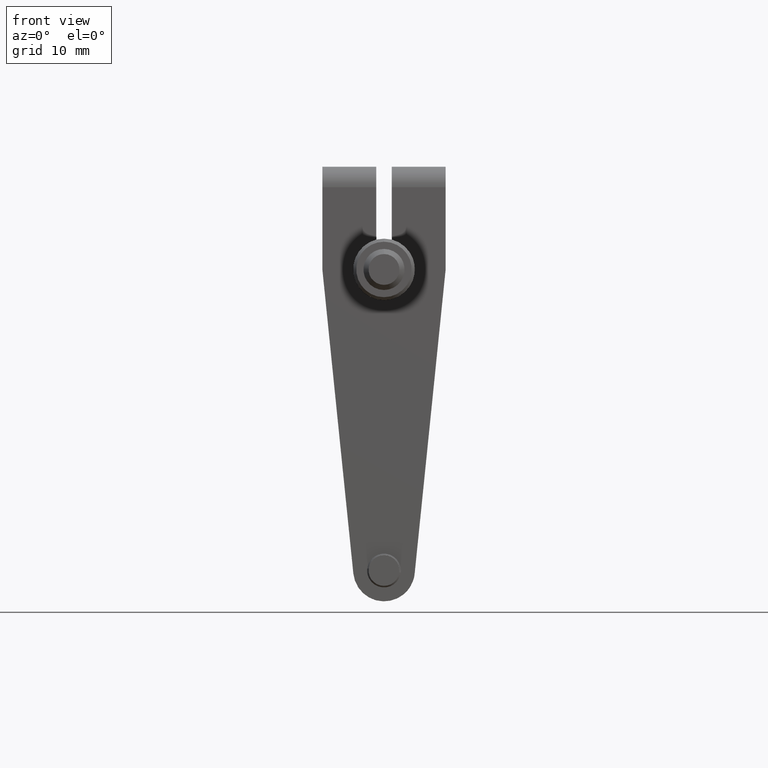
[diagram: clean part render]
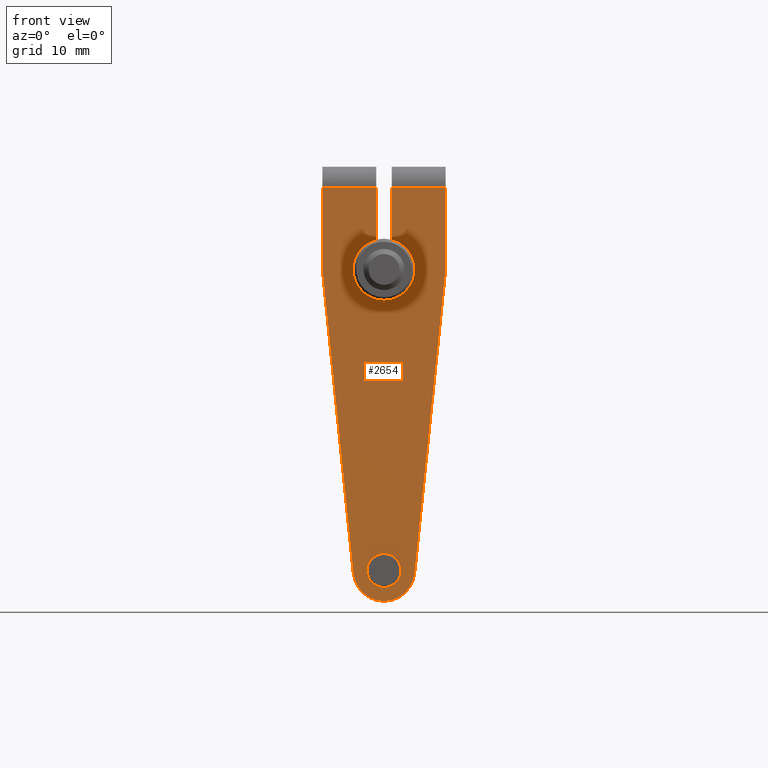
[diagram: same view with one face highlighted and labeled with its STEP entity id]
A machine part, front view. The second image highlights one B-rep face of the part: STEP entity #2654.
In plain terms, the highlighted planar face has unit normal (-0, 1, 0).
Its self-contained STEP definition (entity closure, byte-faithful):
#4 = CARTESIAN_POINT ( 'NONE',  ( 1.650000000000001910, 5.886547410561991457E-15, -29.30000000000019966 ) ) ;
#47 = CARTESIAN_POINT ( 'NONE',  ( -4.066191827689641844E-16, 5.857047165704546372E-15, -29.30000000000019966 ) ) ;
#188 = ORIENTED_EDGE ( 'NONE', *, *, #4985, .F. ) ;
#224 = LINE ( 'NONE', #2039, #5355 ) ;
#232 = ORIENTED_EDGE ( 'NONE', *, *, #703, .F. ) ;
#253 = ORIENTED_EDGE ( 'NONE', *, *, #3647, .F. ) ;
#265 = CARTESIAN_POINT ( 'NONE',  ( 6.000000000000052403, 1.072736176634379454E-16, -8.326672684688777591E-17 ) ) ;
#332 = DIRECTION ( 'NONE',  ( 7.285838599102595960E-17, 2.460847057598062588E-16, -1.000000000000000000 ) ) ;
#578 = EDGE_LOOP ( 'NONE', ( #5699, #1323, #5367, #232, #188, #1983, #253, #4539, #3921, #3757 ) ) ;
#609 = DIRECTION ( 'NONE',  ( -1.787893627723952815E-17, 1.000000000000000000, 2.460847057598134572E-16 ) ) ;
#623 = AXIS2_PLACEMENT_3D ( 'NONE', #4929, #2916, #5430 ) ;
#624 = EDGE_CURVE ( 'NONE', #3132, #2528, #4648, .T. ) ;
#650 = DIRECTION ( 'NONE',  ( -1.387778780781436739E-17, 2.460847057598062588E-16, -1.000000000000000000 ) ) ;
#659 = ORIENTED_EDGE ( 'NONE', *, *, #4773, .F. ) ;
#703 = EDGE_CURVE ( 'NONE', #5943, #5069, #1379, .T. ) ;
#712 = DIRECTION ( 'NONE',  ( 1.387778780781436739E-17, -2.460847057598062588E-16, 1.000000000000000000 ) ) ;
#842 = CARTESIAN_POINT ( 'NONE',  ( -0.7500000000000063283, -1.982086848286392169E-15, 8.000000000000049738 ) ) ;
#991 = EDGE_CURVE ( 'NONE', #2528, #5300, #224, .T. ) ;
#1021 = CARTESIAN_POINT ( 'NONE',  ( 1.110223024625159992E-16, -1.968677646078462298E-15, 8.000000000000049738 ) ) ;
#1026 = LINE ( 'NONE', #2898, #2040 ) ;
#1083 = CARTESIAN_POINT ( 'NONE',  ( -6.000000000000051514, -2.075951263741900478E-15, 8.000000000000049738 ) ) ;
#1095 = VERTEX_POINT ( 'NONE', #3742 ) ;
#1184 = VERTEX_POINT ( 'NONE', #6369 ) ;
#1323 = ORIENTED_EDGE ( 'NONE', *, *, #1532, .T. ) ;
#1364 = VECTOR ( 'NONE', #5419, 1000.000000000000000 ) ;
#1366 = AXIS2_PLACEMENT_3D ( 'NONE', #2131, #609, #3583 ) ;
#1379 = LINE ( 'NONE', #2085, #2093 ) ;
#1419 = VECTOR ( 'NONE', #1566, 1000.000000000000000 ) ;
#1491 = EDGE_LOOP ( 'NONE', ( #3208, #659 ) ) ;
#1496 = CARTESIAN_POINT ( 'NONE',  ( 2.984557093065597577, 7.338453532714837308E-15, -29.60400486547437993 ) ) ;
#1525 = LINE ( 'NONE', #4007, #4495 ) ;
#1532 = EDGE_CURVE ( 'NONE', #5300, #2809, #1525, .T. ) ;
#1566 = DIRECTION ( 'NONE',  ( -0.1013349551580598890, 2.430061901508669109E-16, -0.9948523643551911988 ) ) ;
#1983 = ORIENTED_EDGE ( 'NONE', *, *, #3097, .F. ) ;
#2039 = CARTESIAN_POINT ( 'NONE',  ( -0.7500000000000064393, -2.747883989543573921E-16, 1.062151326875022006 ) ) ;
#2040 = VECTOR ( 'NONE', #332, 1000.000000000000000 ) ;
#2078 = EDGE_CURVE ( 'NONE', #1184, #4703, #2465, .T. ) ;
#2082 = PLANE ( 'NONE',  #1366 ) ;
#2085 = CARTESIAN_POINT ( 'NONE',  ( -2.984557093065598465, 7.231732120549430660E-15, -29.60400486547437993 ) ) ;
#2087 = DIRECTION ( 'NONE',  ( -1.000000000000000000, -1.787893627723957745E-17, 0.0000000000000000000 ) ) ;
#2093 = VECTOR ( 'NONE', #6035, 1000.000000000000000 ) ;
#2094 = AXIS2_PLACEMENT_3D ( 'NONE', #3055, #4022, #3549 ) ;
#2131 = CARTESIAN_POINT ( 'NONE',  ( -4.066191827689642337E-16, 7.210281878762368497E-15, -29.30000000000019966 ) ) ;
#2134 = VERTEX_POINT ( 'NONE', #1496 ) ;
#2204 = EDGE_CURVE ( 'NONE', #6273, #1095, #2849, .T. ) ;
#2323 = LINE ( 'NONE', #5083, #5752 ) ;
#2465 = LINE ( 'NONE', #1021, #1364 ) ;
#2528 = VERTEX_POINT ( 'NONE', #2692 ) ;
#2654 = ADVANCED_FACE ( 'NONE', ( #5489, #4701 ), #2082, .F. ) ;
#2692 = CARTESIAN_POINT ( 'NONE',  ( -0.7500000000000064393, -7.282206775809953118E-16, 2.904737509655575867 ) ) ;
#2809 = VERTEX_POINT ( 'NONE', #1083 ) ;
#2849 = CIRCLE ( 'NONE', #5325, 1.650000000000002354 ) ;
#2898 = CARTESIAN_POINT ( 'NONE',  ( 6.000000000000052403, 1.072736176634379454E-16, -8.326672684688777591E-17 ) ) ;
#2916 = DIRECTION ( 'NONE',  ( -1.787893627723963292E-17, 1.000000000000000000, 2.460847057598134572E-16 ) ) ;
#2949 = CARTESIAN_POINT ( 'NONE',  ( -6.000000000000051514, -2.568120675261514770E-15, 10.00000000000004974 ) ) ;
#3055 = CARTESIAN_POINT ( 'NONE',  ( -4.066191827689641844E-16, 5.857047165704546372E-15, -29.30000000000019966 ) ) ;
#3097 = EDGE_CURVE ( 'NONE', #3509, #2134, #3232, .T. ) ;
#3121 = CARTESIAN_POINT ( 'NONE',  ( -6.000000000000052403, -1.072736176634379454E-16, 8.326672684688777591E-17 ) ) ;
#3132 = VERTEX_POINT ( 'NONE', #4032 ) ;
#3208 = ORIENTED_EDGE ( 'NONE', *, *, #2204, .F. ) ;
#3232 = LINE ( 'NONE', #3576, #1419 ) ;
#3283 = CIRCLE ( 'NONE', #2094, 1.650000000000002354 ) ;
#3509 = VERTEX_POINT ( 'NONE', #265 ) ;
#3529 = DIRECTION ( 'NONE',  ( 1.787893627723963292E-17, -1.000000000000000000, -2.460847057598134572E-16 ) ) ;
#3549 = DIRECTION ( 'NONE',  ( 1.000000000000000000, 1.787893627723938332E-17, 0.0000000000000000000 ) ) ;
#3576 = CARTESIAN_POINT ( 'NONE',  ( 2.984557093065597577, 7.338453532714837308E-15, -29.60400486547437993 ) ) ;
#3583 = DIRECTION ( 'NONE',  ( -1.000000000000000000, -1.787893627723953123E-17, 1.387778780781449990E-17 ) ) ;
#3634 = LINE ( 'NONE', #2949, #4877 ) ;
#3647 = EDGE_CURVE ( 'NONE', #1184, #3509, #1026, .T. ) ;
#3742 = CARTESIAN_POINT ( 'NONE',  ( -1.649999999999992140, 5.827546920847101286E-15, -29.30000000000019966 ) ) ;
#3757 = ORIENTED_EDGE ( 'NONE', *, *, #624, .T. ) ;
#3921 = ORIENTED_EDGE ( 'NONE', *, *, #6087, .T. ) ;
#3951 = CARTESIAN_POINT ( 'NONE',  ( 0.7500000000000063283, -1.955268443870532821E-15, 8.000000000000049738 ) ) ;
#4007 = CARTESIAN_POINT ( 'NONE',  ( 1.110223024625159992E-16, -1.968677646078462298E-15, 8.000000000000049738 ) ) ;
#4022 = DIRECTION ( 'NONE',  ( 1.787893627723963292E-17, -1.000000000000000000, -2.460847057598134572E-16 ) ) ;
#4025 = DIRECTION ( 'NONE',  ( 1.000000000000000000, 1.787893627723938332E-17, 0.0000000000000000000 ) ) ;
#4032 = CARTESIAN_POINT ( 'NONE',  ( 0.7500000000000062172, -7.014022731651358655E-16, 2.904737509655575867 ) ) ;
#4148 = CARTESIAN_POINT ( 'NONE',  ( -2.984557093065598465, 7.231732120549430660E-15, -29.60400486547437993 ) ) ;
#4157 = CARTESIAN_POINT ( 'NONE',  ( -4.066191827689642337E-16, 7.210281878762368497E-15, -29.30000000000019966 ) ) ;
#4491 = DIRECTION ( 'NONE',  ( 1.006139616066548731E-16, -2.460847057598062588E-16, 1.000000000000000000 ) ) ;
#4495 = VECTOR ( 'NONE', #4997, 1000.000000000000000 ) ;
#4539 = ORIENTED_EDGE ( 'NONE', *, *, #2078, .T. ) ;
#4648 = CIRCLE ( 'NONE', #623, 3.000000000000019984 ) ;
#4701 = FACE_OUTER_BOUND ( 'NONE', #578, .T. ) ;
#4703 = VERTEX_POINT ( 'NONE', #3951 ) ;
#4773 = EDGE_CURVE ( 'NONE', #1095, #6273, #3283, .T. ) ;
#4877 = VECTOR ( 'NONE', #4491, 1000.000000000000000 ) ;
#4929 = CARTESIAN_POINT ( 'NONE',  ( 0.0000000000000000000, 0.0000000000000000000, 0.0000000000000000000 ) ) ;
#4985 = EDGE_CURVE ( 'NONE', #2134, #5943, #5372, .T. ) ;
#4997 = DIRECTION ( 'NONE',  ( -1.000000000000000000, -1.787893627723953431E-17, 1.387778780781449990E-17 ) ) ;
#5053 = DIRECTION ( 'NONE',  ( -1.787893627723963292E-17, 1.000000000000000000, 2.460847057598134572E-16 ) ) ;
#5069 = VERTEX_POINT ( 'NONE', #3121 ) ;
#5083 = CARTESIAN_POINT ( 'NONE',  ( 0.7500000000000062172, -2.479699945384977979E-16, 1.062151326875021784 ) ) ;
#5300 = VERTEX_POINT ( 'NONE', #842 ) ;
#5325 = AXIS2_PLACEMENT_3D ( 'NONE', #47, #3529, #4025 ) ;
#5355 = VECTOR ( 'NONE', #712, 1000.000000000000000 ) ;
#5367 = ORIENTED_EDGE ( 'NONE', *, *, #6250, .F. ) ;
#5372 = CIRCLE ( 'NONE', #5385, 3.000000000000018652 ) ;
#5385 = AXIS2_PLACEMENT_3D ( 'NONE', #4157, #5053, #2087 ) ;
#5419 = DIRECTION ( 'NONE',  ( -1.000000000000000000, -1.787893627723953431E-17, 1.387778780781449990E-17 ) ) ;
#5430 = DIRECTION ( 'NONE',  ( -1.000000000000000000, -1.787893627723953123E-17, 1.387778780781449990E-17 ) ) ;
#5489 = FACE_BOUND ( 'NONE', #1491, .T. ) ;
#5699 = ORIENTED_EDGE ( 'NONE', *, *, #991, .T. ) ;
#5752 = VECTOR ( 'NONE', #650, 1000.000000000000000 ) ;
#5943 = VERTEX_POINT ( 'NONE', #4148 ) ;
#6035 = DIRECTION ( 'NONE',  ( -0.1013349551580598612, -2.466297125627226547E-16, 0.9948523643551911988 ) ) ;
#6087 = EDGE_CURVE ( 'NONE', #4703, #3132, #2323, .T. ) ;
#6250 = EDGE_CURVE ( 'NONE', #5069, #2809, #3634, .T. ) ;
#6273 = VERTEX_POINT ( 'NONE', #4 ) ;
#6369 = CARTESIAN_POINT ( 'NONE',  ( 6.000000000000051514, -1.861404028415024513E-15, 8.000000000000049738 ) ) ;